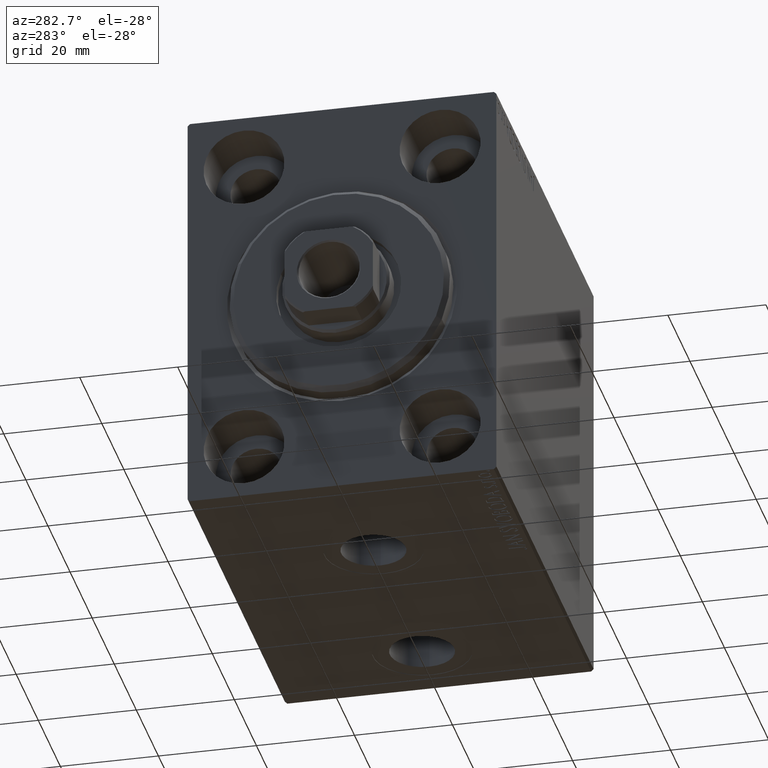
[diagram: clean part render]
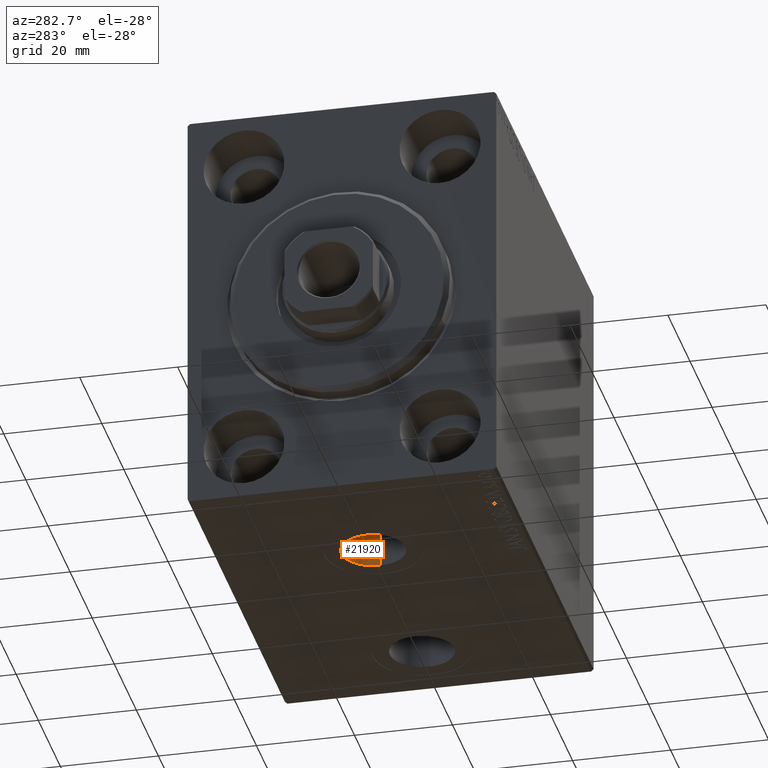
[diagram: same view with one face highlighted and labeled with its STEP entity id]
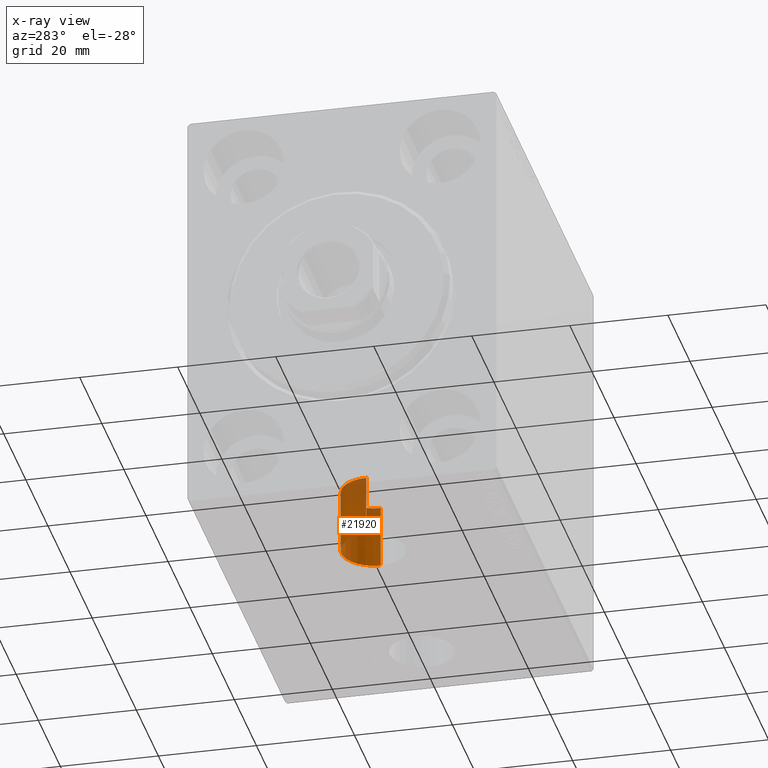
[diagram: x-ray of the same camera — body ghosted, the highlighted face saturated]
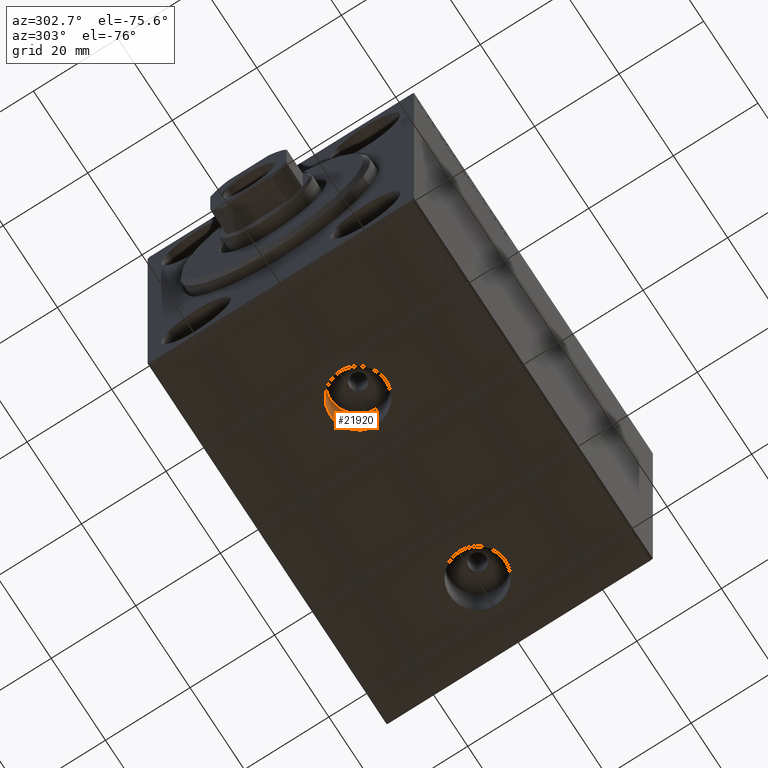
[diagram: same view with one face highlighted and labeled with its STEP entity id]
A machine part, auxiliary view. The second image highlights one B-rep face of the part: STEP entity #21920.
The next image is the same camera in x-ray: the body ghosted, the highlighted face saturated — about 32% of this face is hidden behind the body in this view.
A second angle (auxiliary view) of the same face is appended — the face is thin or edge-on in the first view.
In plain terms, the highlighted cylindrical surface (edge-blend (fillet) strip) has radius 6.58 mm, axis along (-0, -0, -1).
Its self-contained STEP definition (entity closure, byte-faithful):
#2899 = DIRECTION ( 'NONE',  ( 0.000000000000000000, 0.000000000000000000, -1.000000000000000000 ) ) ;
#3227 = DIRECTION ( 'NONE',  ( -0.000000000000000000, -0.000000000000000000, -1.000000000000000000 ) ) ;
#5720 = CIRCLE ( 'NONE', #40550, 6.580000000000002736 ) ;
#5880 = CARTESIAN_POINT ( 'NONE',  ( 35.07999999999999829, -5.390615569523572217E-15, -29.50000000000000711 ) ) ;
#7315 = EDGE_CURVE ( 'NONE', #14869, #17125, #5720, .T. ) ;
#8912 = VERTEX_POINT ( 'NONE', #5880 ) ;
#10398 = LINE ( 'NONE', #20180, #38429 ) ;
#10530 = EDGE_CURVE ( 'NONE', #23021, #8912, #24254, .T. ) ;
#14869 = VERTEX_POINT ( 'NONE', #22493 ) ;
#15332 = CARTESIAN_POINT ( 'NONE',  ( 35.07999999999999829, -5.390615569523572217E-15, -42.40000000000000568 ) ) ;
#15539 = EDGE_LOOP ( 'NONE', ( #29433, #37805, #30198, #35921 ) ) ;
#15953 = CARTESIAN_POINT ( 'NONE',  ( 21.91999999999999815, -6.196433163362530470E-15, -29.50000000000000711 ) ) ;
#16958 = DIRECTION ( 'NONE',  ( 0.000000000000000000, 0.000000000000000000, -1.000000000000000000 ) ) ;
#17005 = CARTESIAN_POINT ( 'NONE',  ( 28.50000000000000000, -6.196433163362530470E-15, -29.50000000000000711 ) ) ;
#17125 = VERTEX_POINT ( 'NONE', #15332 ) ;
#20180 = CARTESIAN_POINT ( 'NONE',  ( 35.07999999999999829, -5.390615569523572217E-15, -29.50000000000000711 ) ) ;
#21882 = CARTESIAN_POINT ( 'NONE',  ( 21.91999999999999815, -6.196433163362530470E-15, -29.50000000000000711 ) ) ;
#21920 = ADVANCED_FACE ( 'NONE', ( #26801 ), #30146, .F. ) ;
#22493 = CARTESIAN_POINT ( 'NONE',  ( 21.91999999999999815, -6.196433163362530470E-15, -42.40000000000000568 ) ) ;
#23021 = VERTEX_POINT ( 'NONE', #21882 ) ;
#23123 = DIRECTION ( 'NONE',  ( -1.000000000000000000, 0.000000000000000000, 0.000000000000000000 ) ) ;
#23190 = DIRECTION ( 'NONE',  ( -1.000000000000000000, 0.000000000000000000, 0.000000000000000000 ) ) ;
#23564 = CARTESIAN_POINT ( 'NONE',  ( 28.50000000000000000, -6.196433163362530470E-15, -42.40000000000000568 ) ) ;
#23855 = CARTESIAN_POINT ( 'NONE',  ( 28.50000000000000000, -6.196433163362530470E-15, -29.50000000000000711 ) ) ;
#23948 = DIRECTION ( 'NONE',  ( -0.000000000000000000, -0.000000000000000000, -1.000000000000000000 ) ) ;
#24254 = CIRCLE ( 'NONE', #38490, 6.580000000000002736 ) ;
#26801 = FACE_OUTER_BOUND ( 'NONE', #15539, .T. ) ;
#27654 = AXIS2_PLACEMENT_3D ( 'NONE', #17005, #3227, #30800 ) ;
#29433 = ORIENTED_EDGE ( 'NONE', *, *, #30868, .F. ) ;
#29523 = DIRECTION ( 'NONE',  ( -0.000000000000000000, -0.000000000000000000, -1.000000000000000000 ) ) ;
#30146 = CYLINDRICAL_SURFACE ( 'NONE', #27654, 6.580000000000002736 ) ;
#30198 = ORIENTED_EDGE ( 'NONE', *, *, #33213, .T. ) ;
#30800 = DIRECTION ( 'NONE',  ( -1.000000000000000000, 0.000000000000000000, 0.000000000000000000 ) ) ;
#30868 = EDGE_CURVE ( 'NONE', #8912, #17125, #10398, .T. ) ;
#32412 = LINE ( 'NONE', #15953, #42015 ) ;
#33213 = EDGE_CURVE ( 'NONE', #23021, #14869, #32412, .T. ) ;
#35921 = ORIENTED_EDGE ( 'NONE', *, *, #7315, .T. ) ;
#37805 = ORIENTED_EDGE ( 'NONE', *, *, #10530, .F. ) ;
#38429 = VECTOR ( 'NONE', #23948, 1000.000000000000000 ) ;
#38490 = AXIS2_PLACEMENT_3D ( 'NONE', #23855, #16958, #23190 ) ;
#40550 = AXIS2_PLACEMENT_3D ( 'NONE', #23564, #2899, #23123 ) ;
#42015 = VECTOR ( 'NONE', #29523, 1000.000000000000000 ) ;